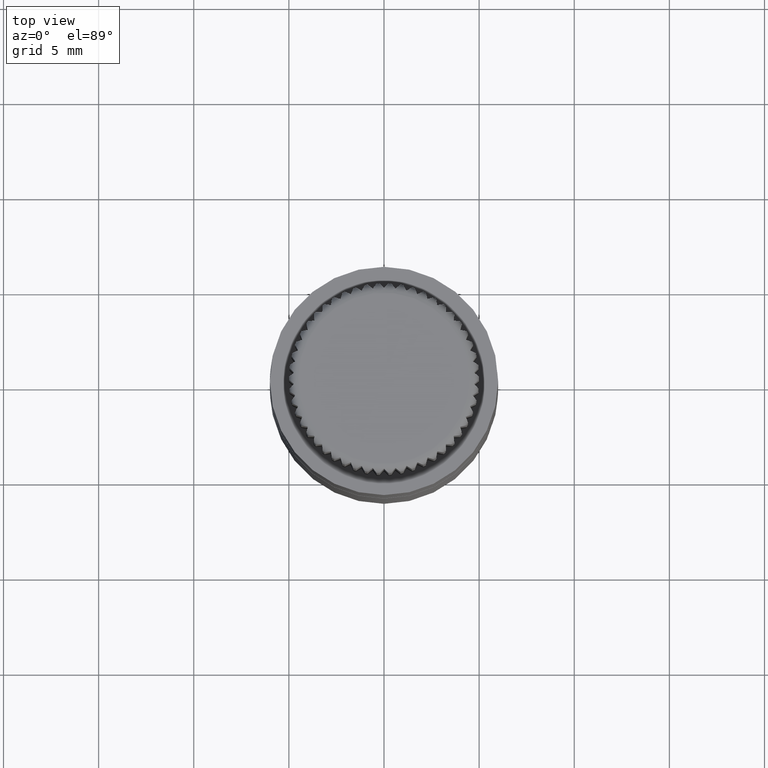
[diagram: clean part render]
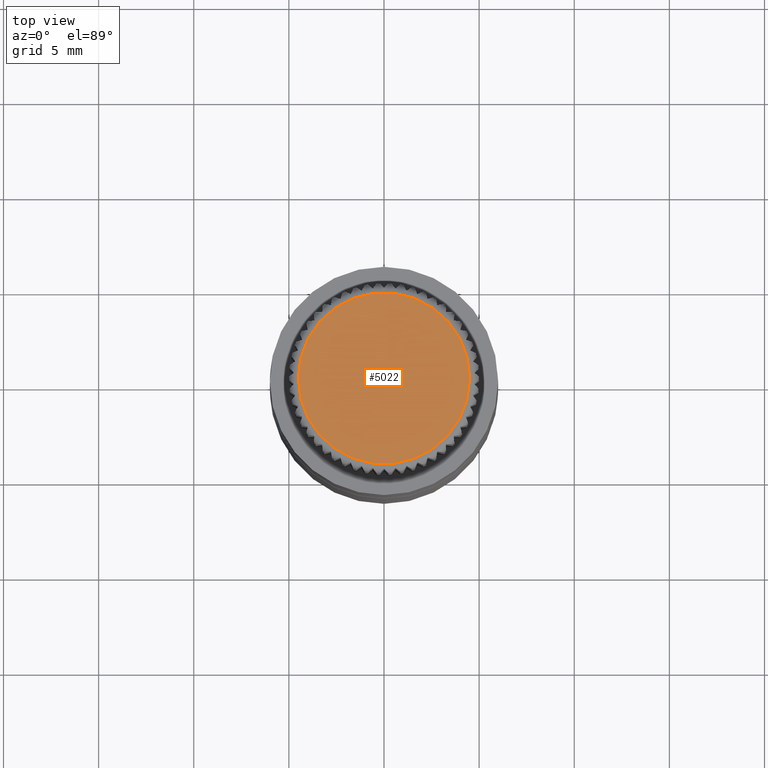
[diagram: same view with one face highlighted and labeled with its STEP entity id]
A machine part, top view. The second image highlights one B-rep face of the part: STEP entity #5022.
In plain terms, the highlighted planar face has unit normal (-0, 0, -1).
Its self-contained STEP definition (entity closure, byte-faithful):
#318 = CARTESIAN_POINT ( 'NONE',  ( -4.500000000000016900, -1.249976684658536100E-015, 34.49999999999999300 ) ) ;
#3359 = CIRCLE ( 'NONE', #6419, 4.500000000000016900 ) ;
#3633 = VERTEX_POINT ( 'NONE', #318 ) ;
#3635 = AXIS2_PLACEMENT_3D ( 'NONE', #3940, #4949, #5804 ) ;
#3815 = VERTEX_POINT ( 'NONE', #9336 ) ;
#3940 = CARTESIAN_POINT ( 'NONE',  ( 3.469446951953614200E-018, -9.052242572170705400E-033, 34.49999999999999300 ) ) ;
#4089 = EDGE_CURVE ( 'NONE', #3815, #3633, #7181, .T. ) ;
#4156 = EDGE_LOOP ( 'NONE', ( #8421, #5815 ) ) ;
#4159 = PLANE ( 'NONE',  #4721 ) ;
#4699 = EDGE_CURVE ( 'NONE', #3633, #3815, #3359, .T. ) ;
#4721 = AXIS2_PLACEMENT_3D ( 'NONE', #10984, #9343, #5217 ) ;
#4949 = DIRECTION ( 'NONE',  ( 4.336808689942016800E-019, -1.131530321521338700E-033, 1.000000000000000000 ) ) ;
#5022 = ADVANCED_FACE ( 'NONE', ( #8919 ), #4159, .F. ) ;
#5217 = DIRECTION ( 'NONE',  ( -1.000000000000000000, -2.777725965907847600E-016, 4.336808689942016800E-019 ) ) ;
#5804 = DIRECTION ( 'NONE',  ( -1.000000000000000000, -2.777725965907847600E-016, 0.0000000000000000000 ) ) ;
#5815 = ORIENTED_EDGE ( 'NONE', *, *, #4089, .T. ) ;
#6154 = CARTESIAN_POINT ( 'NONE',  ( 3.469446951953614200E-018, -9.052242572170705400E-033, 34.49999999999999300 ) ) ;
#6197 = DIRECTION ( 'NONE',  ( 4.336808689942016800E-019, -1.131530321521338700E-033, 1.000000000000000000 ) ) ;
#6419 = AXIS2_PLACEMENT_3D ( 'NONE', #6154, #6197, #7792 ) ;
#7181 = CIRCLE ( 'NONE', #3635, 4.500000000000016900 ) ;
#7792 = DIRECTION ( 'NONE',  ( -1.000000000000000000, -2.777725965907847600E-016, 0.0000000000000000000 ) ) ;
#8421 = ORIENTED_EDGE ( 'NONE', *, *, #4699, .T. ) ;
#8919 = FACE_OUTER_BOUND ( 'NONE', #4156, .T. ) ;
#9336 = CARTESIAN_POINT ( 'NONE',  ( 4.499999999999999100, 1.901127063401221400E-015, 34.49999999999999300 ) ) ;
#9343 = DIRECTION ( 'NONE',  ( -4.336808689942016800E-019, 1.131530321521338700E-033, -1.000000000000000000 ) ) ;
#10984 = CARTESIAN_POINT ( 'NONE',  ( 2.385244779465244700E-018, 5.000000000000000000, 34.49999999999999300 ) ) ;